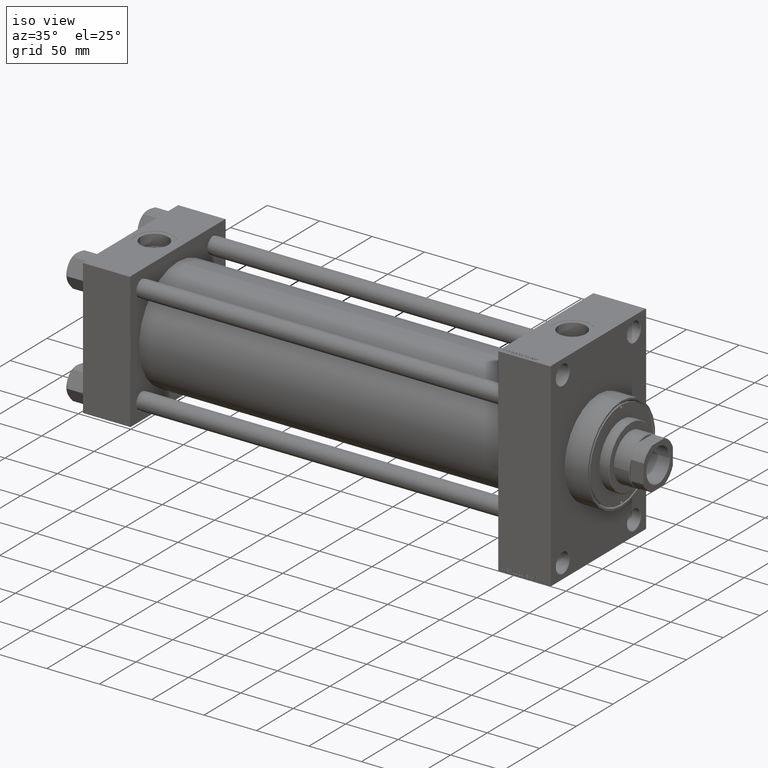
[diagram: clean part render]
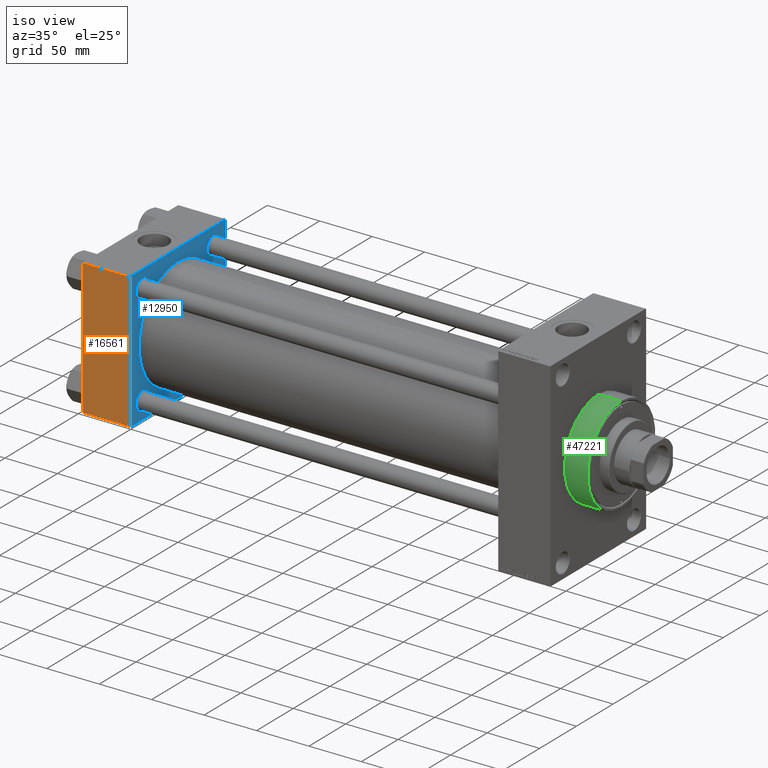
[diagram: same view with three faces highlighted in distinct colors, each labeled with its STEP entity id]
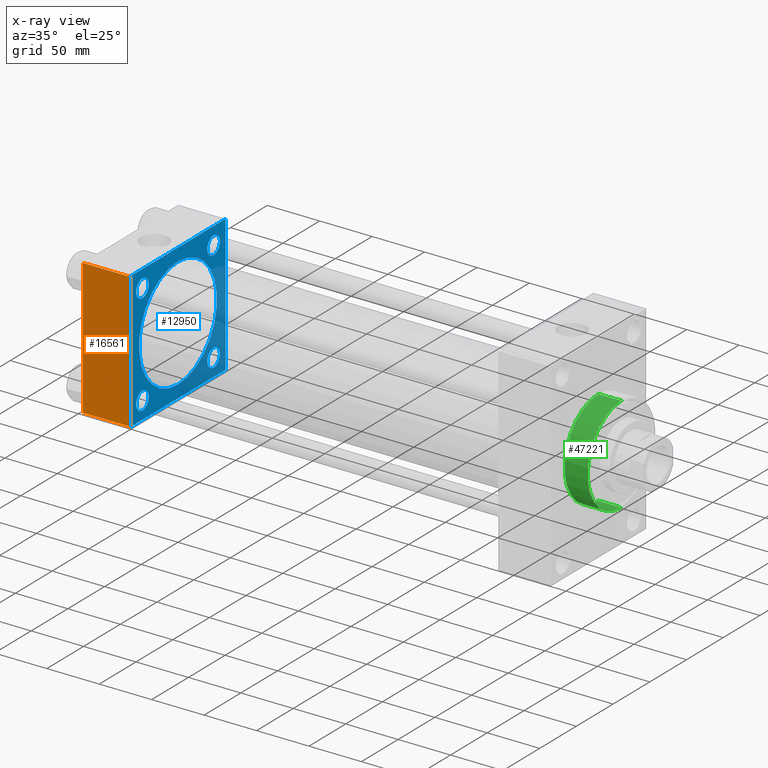
[diagram: x-ray of the same camera — body ghosted, the three highlighted faces saturated]
A machine part, iso view with three faces highlighted in distinct colors.
The next image is the same camera in x-ray (body ghosted, the three faces saturated) — at least one of them is partly hidden behind the body in this view.
Their STEP definitions:

[orange] entity #16561 — the highlighted planar face has unit normal (0, 1, 0).
#4 = ORIENTED_EDGE ( 'NONE', *, *, #20413, .F. ) ;
#1281 = VECTOR ( 'NONE', #29300, 1000.000000000000000 ) ;
#3002 = CARTESIAN_POINT ( 'NONE',  ( 0.000000000000000000, -65.00000000000000000, 64.50000000000000000 ) ) ;
#3211 = LINE ( 'NONE', #15035, #35517 ) ;
#6414 = EDGE_CURVE ( 'NONE', #38175, #41938, #31095, .T. ) ;
#8025 = PLANE ( 'NONE',  #25352 ) ;
#10057 = DIRECTION ( 'NONE',  ( -1.000000000000000000, 0.000000000000000000, 0.000000000000000000 ) ) ;
#10406 = VERTEX_POINT ( 'NONE', #37899 ) ;
#13219 = CARTESIAN_POINT ( 'NONE',  ( 45.00000000000000000, -65.00000000000000000, 64.50000000000000000 ) ) ;
#14693 = VECTOR ( 'NONE', #10057, 1000.000000000000000 ) ;
#15035 = CARTESIAN_POINT ( 'NONE',  ( 45.00000000000000000, -65.00000000000000000, 65.00000000000000000 ) ) ;
#15284 = DIRECTION ( 'NONE',  ( -0.000000000000000000, 1.000000000000000000, 0.000000000000000000 ) ) ;
#16561 = ADVANCED_FACE ( 'NONE', ( #45309 ), #8025, .F. ) ;
#19248 = ORIENTED_EDGE ( 'NONE', *, *, #22031, .T. ) ;
#20413 = EDGE_CURVE ( 'NONE', #38061, #10406, #3211, .T. ) ;
#22031 = EDGE_CURVE ( 'NONE', #38061, #38175, #43231, .T. ) ;
#24328 = EDGE_LOOP ( 'NONE', ( #27119, #35065, #4, #19248 ) ) ;
#25352 = AXIS2_PLACEMENT_3D ( 'NONE', #26874, #15284, #41660 ) ;
#26150 = DIRECTION ( 'NONE',  ( 0.000000000000000000, 0.000000000000000000, -1.000000000000000000 ) ) ;
#26874 = CARTESIAN_POINT ( 'NONE',  ( 45.00000000000000000, -65.00000000000000000, 65.00000000000000000 ) ) ;
#27043 = CARTESIAN_POINT ( 'NONE',  ( 0.000000000000000000, -65.00000000000000000, -64.49999999999991473 ) ) ;
#27119 = ORIENTED_EDGE ( 'NONE', *, *, #6414, .T. ) ;
#27888 = VECTOR ( 'NONE', #45894, 1000.000000000000000 ) ;
#29300 = DIRECTION ( 'NONE',  ( 1.000000000000000000, 0.000000000000000000, 0.000000000000000000 ) ) ;
#30642 = CARTESIAN_POINT ( 'NONE',  ( 45.00000000000000000, -65.00000000000000000, 64.50000000000000000 ) ) ;
#31095 = LINE ( 'NONE', #45398, #27888 ) ;
#33404 = EDGE_CURVE ( 'NONE', #41938, #10406, #34101, .T. ) ;
#34101 = LINE ( 'NONE', #37034, #1281 ) ;
#35065 = ORIENTED_EDGE ( 'NONE', *, *, #33404, .T. ) ;
#35517 = VECTOR ( 'NONE', #26150, 1000.000000000000000 ) ;
#37034 = CARTESIAN_POINT ( 'NONE',  ( 45.00000000000000000, -65.00000000000000000, -64.49999999999991473 ) ) ;
#37899 = CARTESIAN_POINT ( 'NONE',  ( 45.00000000000000000, -65.00000000000000000, -64.49999999999991473 ) ) ;
#38061 = VERTEX_POINT ( 'NONE', #30642 ) ;
#38175 = VERTEX_POINT ( 'NONE', #3002 ) ;
#41660 = DIRECTION ( 'NONE',  ( 0.000000000000000000, -0.000000000000000000, 1.000000000000000000 ) ) ;
#41938 = VERTEX_POINT ( 'NONE', #27043 ) ;
#43231 = LINE ( 'NONE', #13219, #14693 ) ;
#45309 = FACE_OUTER_BOUND ( 'NONE', #24328, .T. ) ;
#45398 = CARTESIAN_POINT ( 'NONE',  ( 0.000000000000000000, -65.00000000000000000, 65.00000000000000000 ) ) ;
#45894 = DIRECTION ( 'NONE',  ( 0.000000000000000000, 0.000000000000000000, -1.000000000000000000 ) ) ;

[blue] entity #12950 — the highlighted planar face has unit normal (-1, 0, 0).
#70 = DIRECTION ( 'NONE',  ( 0.000000000000000000, 0.000000000000000000, 1.000000000000000000 ) ) ;
#226 = VERTEX_POINT ( 'NONE', #47017 ) ;
#679 = EDGE_LOOP ( 'NONE', ( #15068, #38184, #14180, #40739, #21505, #20919, #14470, #4245 ) ) ;
#825 = FACE_OUTER_BOUND ( 'NONE', #679, .T. ) ;
#871 = EDGE_LOOP ( 'NONE', ( #23095, #43294 ) ) ;
#1522 = DIRECTION ( 'NONE',  ( -1.000000000000000000, 0.000000000000000000, -0.000000000000000000 ) ) ;
#1741 = ORIENTED_EDGE ( 'NONE', *, *, #21431, .T. ) ;
#2307 = EDGE_CURVE ( 'NONE', #27009, #7029, #16968, .T. ) ;
#2406 = DIRECTION ( 'NONE',  ( 0.000000000000000000, 0.7071067811865279218, -0.7071067811865671127 ) ) ;
#2525 = DIRECTION ( 'NONE',  ( 0.000000000000000000, -1.000000000000000000, -1.067522139062650425E-16 ) ) ;
#2954 = CIRCLE ( 'NONE', #29972, 8.499999999999896971 ) ;
#3046 = ORIENTED_EDGE ( 'NONE', *, *, #12909, .T. ) ;
#3211 = LINE ( 'NONE', #15035, #35517 ) ;
#3643 = VECTOR ( 'NONE', #3990, 1000.000000000000000 ) ;
#3974 = DIRECTION ( 'NONE',  ( -1.000000000000000000, 0.000000000000000000, -0.000000000000000000 ) ) ;
#3990 = DIRECTION ( 'NONE',  ( -0.000000000000000000, -0.7071067811865672237, -0.7071067811865279218 ) ) ;
#4124 = EDGE_CURVE ( 'NONE', #10406, #7029, #47193, .T. ) ;
#4245 = ORIENTED_EDGE ( 'NONE', *, *, #4124, .T. ) ;
#4444 = FACE_BOUND ( 'NONE', #28496, .T. ) ;
#4456 = LINE ( 'NONE', #23075, #3643 ) ;
#5158 = FACE_BOUND ( 'NONE', #35603, .T. ) ;
#5546 = DIRECTION ( 'NONE',  ( 0.000000000000000000, 0.000000000000000000, -1.000000000000000000 ) ) ;
#5599 = DIRECTION ( 'NONE',  ( -1.000000000000000000, 0.000000000000000000, -0.000000000000000000 ) ) ;
#6422 = CARTESIAN_POINT ( 'NONE',  ( 45.00000000000000000, 65.00000000000000000, -64.49999999999995737 ) ) ;
#6830 = CARTESIAN_POINT ( 'NONE',  ( 45.00000000000000000, -48.44999999999999574, 56.94999999999992468 ) ) ;
#6992 = CARTESIAN_POINT ( 'NONE',  ( 45.00000000000000000, 48.45000000000000995, -39.95000000000011653 ) ) ;
#7029 = VERTEX_POINT ( 'NONE', #13841 ) ;
#7087 = CIRCLE ( 'NONE', #7950, 8.499999999999896971 ) ;
#7950 = AXIS2_PLACEMENT_3D ( 'NONE', #17229, #1522, #36334 ) ;
#8075 = DIRECTION ( 'NONE',  ( 0.000000000000000000, 0.000000000000000000, 1.000000000000000000 ) ) ;
#8117 = DIRECTION ( 'NONE',  ( 0.000000000000000000, 0.000000000000000000, 1.000000000000000000 ) ) ;
#8213 = VERTEX_POINT ( 'NONE', #37463 ) ;
#8555 = FACE_BOUND ( 'NONE', #17776, .T. ) ;
#9048 = DIRECTION ( 'NONE',  ( 0.000000000000000000, 0.000000000000000000, 1.000000000000000000 ) ) ;
#9131 = DIRECTION ( 'NONE',  ( -1.000000000000000000, 0.000000000000000000, -0.000000000000000000 ) ) ;
#9374 = DIRECTION ( 'NONE',  ( 0.000000000000000000, 0.000000000000000000, 1.000000000000000000 ) ) ;
#9555 = ORIENTED_EDGE ( 'NONE', *, *, #42186, .F. ) ;
#9976 = VERTEX_POINT ( 'NONE', #44530 ) ;
#10406 = VERTEX_POINT ( 'NONE', #37899 ) ;
#11154 = EDGE_CURVE ( 'NONE', #46741, #38061, #4456, .T. ) ;
#11596 = AXIS2_PLACEMENT_3D ( 'NONE', #45906, #26734, #23837 ) ;
#11973 = CARTESIAN_POINT ( 'NONE',  ( 45.00000000000000000, 64.49999999999997158, 65.00000000000001421 ) ) ;
#12480 = CARTESIAN_POINT ( 'NONE',  ( 45.00000000000000000, 48.45000000000000995, 48.45000000000001705 ) ) ;
#12671 = FACE_BOUND ( 'NONE', #871, .T. ) ;
#12909 = EDGE_CURVE ( 'NONE', #27642, #44500, #38493, .T. ) ;
#12950 = ADVANCED_FACE ( 'NONE', ( #30565, #4444, #5158, #12671, #8555, #825 ), #23063, .F. ) ;
#13137 = CARTESIAN_POINT ( 'NONE',  ( 45.00000000000000000, 48.45000000000000995, 39.95000000000011653 ) ) ;
#13184 = CARTESIAN_POINT ( 'NONE',  ( 45.00000000000000000, 48.45000000000000995, -56.94999999999991047 ) ) ;
#13841 = CARTESIAN_POINT ( 'NONE',  ( 45.00000000000000000, -64.49999999999994316, -65.00000000000000000 ) ) ;
#14180 = ORIENTED_EDGE ( 'NONE', *, *, #26157, .F. ) ;
#14470 = ORIENTED_EDGE ( 'NONE', *, *, #20413, .T. ) ;
#15035 = CARTESIAN_POINT ( 'NONE',  ( 45.00000000000000000, -65.00000000000000000, 65.00000000000000000 ) ) ;
#15058 = CARTESIAN_POINT ( 'NONE',  ( 44.99999999999998579, -2.602085213965210642E-15, 0.000000000000000000 ) ) ;
#15068 = ORIENTED_EDGE ( 'NONE', *, *, #2307, .F. ) ;
#15088 = VERTEX_POINT ( 'NONE', #40529 ) ;
#15605 = VECTOR ( 'NONE', #5546, 1000.000000000000000 ) ;
#15755 = CARTESIAN_POINT ( 'NONE',  ( 45.00000000000000000, -48.44999999999999574, -48.45000000000003126 ) ) ;
#15846 = CARTESIAN_POINT ( 'NONE',  ( 45.00000000000000000, 48.45000000000000995, -48.45000000000001705 ) ) ;
#16007 = CARTESIAN_POINT ( 'NONE',  ( 45.00000000000000000, 64.49999999999997158, -64.99999999999998579 ) ) ;
#16726 = CARTESIAN_POINT ( 'NONE',  ( 45.00000000000000000, 65.00000000000000000, -64.99999999999998579 ) ) ;
#16968 = LINE ( 'NONE', #16726, #18204 ) ;
#17025 = DIRECTION ( 'NONE',  ( -1.000000000000000000, 0.000000000000000000, -0.000000000000000000 ) ) ;
#17229 = CARTESIAN_POINT ( 'NONE',  ( 45.00000000000000000, 48.45000000000000995, 48.45000000000001705 ) ) ;
#17279 = EDGE_CURVE ( 'NONE', #25049, #46741, #17502, .T. ) ;
#17385 = CARTESIAN_POINT ( 'NONE',  ( 45.00000000000000000, -64.49999999999994316, -65.00000000000000000 ) ) ;
#17502 = LINE ( 'NONE', #43182, #45486 ) ;
#17776 = EDGE_LOOP ( 'NONE', ( #9555, #40298 ) ) ;
#18148 = LINE ( 'NONE', #32445, #27070 ) ;
#18204 = VECTOR ( 'NONE', #46287, 1000.000000000000000 ) ;
#18481 = EDGE_CURVE ( 'NONE', #9976, #40532, #20750, .T. ) ;
#18625 = VERTEX_POINT ( 'NONE', #42975 ) ;
#19564 = AXIS2_PLACEMENT_3D ( 'NONE', #15755, #5599, #46280 ) ;
#19841 = VECTOR ( 'NONE', #28379, 1000.000000000000114 ) ;
#20095 = CIRCLE ( 'NONE', #47202, 8.499999999999896971 ) ;
#20413 = EDGE_CURVE ( 'NONE', #38061, #10406, #3211, .T. ) ;
#20526 = LINE ( 'NONE', #39665, #15605 ) ;
#20750 = CIRCLE ( 'NONE', #38557, 8.499999999999896971 ) ;
#20919 = ORIENTED_EDGE ( 'NONE', *, *, #11154, .T. ) ;
#21431 = EDGE_CURVE ( 'NONE', #34093, #47092, #20095, .T. ) ;
#21505 = ORIENTED_EDGE ( 'NONE', *, *, #17279, .T. ) ;
#22780 = EDGE_CURVE ( 'NONE', #27009, #42279, #18148, .T. ) ;
#23063 = PLANE ( 'NONE',  #47035 ) ;
#23075 = CARTESIAN_POINT ( 'NONE',  ( 45.00000000000000000, -65.00000000000000000, 64.50000000000000000 ) ) ;
#23095 = ORIENTED_EDGE ( 'NONE', *, *, #28085, .T. ) ;
#23837 = DIRECTION ( 'NONE',  ( 0.000000000000000000, 0.000000000000000000, 1.000000000000000000 ) ) ;
#25049 = VERTEX_POINT ( 'NONE', #11973 ) ;
#25940 = EDGE_CURVE ( 'NONE', #44500, #27642, #41123, .T. ) ;
#26150 = DIRECTION ( 'NONE',  ( 0.000000000000000000, 0.000000000000000000, -1.000000000000000000 ) ) ;
#26157 = EDGE_CURVE ( 'NONE', #15088, #42279, #20526, .T. ) ;
#26734 = DIRECTION ( 'NONE',  ( 1.000000000000000000, -0.000000000000000000, 0.000000000000000000 ) ) ;
#27009 = VERTEX_POINT ( 'NONE', #16007 ) ;
#27070 = VECTOR ( 'NONE', #47472, 1000.000000000000114 ) ;
#27642 = VERTEX_POINT ( 'NONE', #13184 ) ;
#28085 = EDGE_CURVE ( 'NONE', #40532, #9976, #7087, .T. ) ;
#28261 = VECTOR ( 'NONE', #2406, 1000.000000000000000 ) ;
#28379 = DIRECTION ( 'NONE',  ( 0.000000000000000000, -0.7071067811865474617, 0.7071067811865474617 ) ) ;
#28496 = EDGE_LOOP ( 'NONE', ( #3046, #31329 ) ) ;
#29051 = ORIENTED_EDGE ( 'NONE', *, *, #32227, .T. ) ;
#29587 = DIRECTION ( 'NONE',  ( 1.000000000000000000, -0.000000000000000000, 0.000000000000000000 ) ) ;
#29972 = AXIS2_PLACEMENT_3D ( 'NONE', #44904, #17025, #9048 ) ;
#30565 = FACE_BOUND ( 'NONE', #30746, .T. ) ;
#30610 = CARTESIAN_POINT ( 'NONE',  ( 45.00000000000000000, -48.44999999999999574, -56.94999999999992468 ) ) ;
#30642 = CARTESIAN_POINT ( 'NONE',  ( 45.00000000000000000, -65.00000000000000000, 64.50000000000000000 ) ) ;
#30746 = EDGE_LOOP ( 'NONE', ( #29051, #44194 ) ) ;
#30865 = DIRECTION ( 'NONE',  ( -1.000000000000000000, 0.000000000000000000, -0.000000000000000000 ) ) ;
#31329 = ORIENTED_EDGE ( 'NONE', *, *, #25940, .T. ) ;
#32227 = EDGE_CURVE ( 'NONE', #41341, #8213, #33473, .T. ) ;
#32445 = CARTESIAN_POINT ( 'NONE',  ( 45.00000000000000000, 65.00000000000000000, -64.49999999999995737 ) ) ;
#33473 = CIRCLE ( 'NONE', #19564, 8.499999999999896971 ) ;
#33956 = DIRECTION ( 'NONE',  ( 0.000000000000000000, 0.000000000000000000, 1.000000000000000000 ) ) ;
#33961 = DIRECTION ( 'NONE',  ( -1.000000000000000000, 0.000000000000000000, -0.000000000000000000 ) ) ;
#34093 = VERTEX_POINT ( 'NONE', #46603 ) ;
#34443 = CARTESIAN_POINT ( 'NONE',  ( 45.00000000000000000, 0.000000000000000000, 0.000000000000000000 ) ) ;
#34690 = DIRECTION ( 'NONE',  ( -0.000000000000000000, 0.000000000000000000, 1.000000000000000000 ) ) ;
#35187 = EDGE_CURVE ( 'NONE', #15088, #25049, #47287, .T. ) ;
#35517 = VECTOR ( 'NONE', #26150, 1000.000000000000000 ) ;
#35603 = EDGE_LOOP ( 'NONE', ( #1741, #39459 ) ) ;
#36334 = DIRECTION ( 'NONE',  ( 0.000000000000000000, 0.000000000000000000, 1.000000000000000000 ) ) ;
#37358 = EDGE_CURVE ( 'NONE', #47092, #34093, #2954, .T. ) ;
#37463 = CARTESIAN_POINT ( 'NONE',  ( 45.00000000000000000, -48.44999999999999574, -39.95000000000013074 ) ) ;
#37543 = EDGE_CURVE ( 'NONE', #18625, #226, #37716, .T. ) ;
#37716 = CIRCLE ( 'NONE', #46253, 53.00000000000000711 ) ;
#37838 = DIRECTION ( 'NONE',  ( -1.000000000000000000, 0.000000000000000000, -0.000000000000000000 ) ) ;
#37899 = CARTESIAN_POINT ( 'NONE',  ( 45.00000000000000000, -65.00000000000000000, -64.49999999999991473 ) ) ;
#38061 = VERTEX_POINT ( 'NONE', #30642 ) ;
#38184 = ORIENTED_EDGE ( 'NONE', *, *, #22780, .T. ) ;
#38371 = DIRECTION ( 'NONE',  ( 0.000000000000000000, 0.000000000000000000, 1.000000000000000000 ) ) ;
#38493 = CIRCLE ( 'NONE', #46265, 8.499999999999896971 ) ;
#38557 = AXIS2_PLACEMENT_3D ( 'NONE', #12480, #30865, #38371 ) ;
#38800 = AXIS2_PLACEMENT_3D ( 'NONE', #15846, #41282, #8117 ) ;
#39459 = ORIENTED_EDGE ( 'NONE', *, *, #37358, .T. ) ;
#39527 = CARTESIAN_POINT ( 'NONE',  ( 45.00000000000000000, 64.49999999999997158, 65.00000000000001421 ) ) ;
#39665 = CARTESIAN_POINT ( 'NONE',  ( 45.00000000000000000, 65.00000000000000000, 65.00000000000001421 ) ) ;
#40298 = ORIENTED_EDGE ( 'NONE', *, *, #37543, .F. ) ;
#40529 = CARTESIAN_POINT ( 'NONE',  ( 45.00000000000000000, 65.00000000000000000, 64.49999999999998579 ) ) ;
#40532 = VERTEX_POINT ( 'NONE', #13137 ) ;
#40739 = ORIENTED_EDGE ( 'NONE', *, *, #35187, .T. ) ;
#41123 = CIRCLE ( 'NONE', #38800, 8.499999999999896971 ) ;
#41282 = DIRECTION ( 'NONE',  ( -1.000000000000000000, 0.000000000000000000, -0.000000000000000000 ) ) ;
#41341 = VERTEX_POINT ( 'NONE', #30610 ) ;
#41723 = AXIS2_PLACEMENT_3D ( 'NONE', #42288, #9131, #9374 ) ;
#41726 = CIRCLE ( 'NONE', #11596, 53.00000000000000711 ) ;
#41957 = CARTESIAN_POINT ( 'NONE',  ( 45.00000000000000000, 48.45000000000000995, -48.45000000000001705 ) ) ;
#42186 = EDGE_CURVE ( 'NONE', #226, #18625, #41726, .T. ) ;
#42279 = VERTEX_POINT ( 'NONE', #6422 ) ;
#42288 = CARTESIAN_POINT ( 'NONE',  ( 45.00000000000000000, -48.44999999999999574, -48.45000000000003126 ) ) ;
#42975 = CARTESIAN_POINT ( 'NONE',  ( 44.99999999999998579, 3.888542821515762466E-15, -53.00000000000000711 ) ) ;
#43182 = CARTESIAN_POINT ( 'NONE',  ( 45.00000000000000000, 65.00000000000000000, 65.00000000000001421 ) ) ;
#43294 = ORIENTED_EDGE ( 'NONE', *, *, #18481, .T. ) ;
#44167 = CIRCLE ( 'NONE', #41723, 8.499999999999896971 ) ;
#44194 = ORIENTED_EDGE ( 'NONE', *, *, #45535, .T. ) ;
#44500 = VERTEX_POINT ( 'NONE', #6992 ) ;
#44530 = CARTESIAN_POINT ( 'NONE',  ( 45.00000000000000000, 48.45000000000000995, 56.94999999999991047 ) ) ;
#44904 = CARTESIAN_POINT ( 'NONE',  ( 45.00000000000000000, -48.44999999999999574, 48.45000000000003126 ) ) ;
#45129 = CARTESIAN_POINT ( 'NONE',  ( 45.00000000000000000, -48.44999999999999574, 48.45000000000003126 ) ) ;
#45486 = VECTOR ( 'NONE', #2525, 1000.000000000000000 ) ;
#45535 = EDGE_CURVE ( 'NONE', #8213, #41341, #44167, .T. ) ;
#45906 = CARTESIAN_POINT ( 'NONE',  ( 44.99999999999998579, -2.602085213965210642E-15, 0.000000000000000000 ) ) ;
#46253 = AXIS2_PLACEMENT_3D ( 'NONE', #15058, #29587, #70 ) ;
#46265 = AXIS2_PLACEMENT_3D ( 'NONE', #41957, #33961, #8075 ) ;
#46280 = DIRECTION ( 'NONE',  ( 0.000000000000000000, 0.000000000000000000, 1.000000000000000000 ) ) ;
#46287 = DIRECTION ( 'NONE',  ( 0.000000000000000000, -1.000000000000000000, -1.067522139062650425E-16 ) ) ;
#46603 = CARTESIAN_POINT ( 'NONE',  ( 45.00000000000000000, -48.44999999999999574, 39.95000000000013074 ) ) ;
#46741 = VERTEX_POINT ( 'NONE', #47560 ) ;
#47017 = CARTESIAN_POINT ( 'NONE',  ( 44.99999999999998579, -2.602085213965210642E-15, 53.00000000000000711 ) ) ;
#47035 = AXIS2_PLACEMENT_3D ( 'NONE', #34443, #37838, #34690 ) ;
#47092 = VERTEX_POINT ( 'NONE', #6830 ) ;
#47193 = LINE ( 'NONE', #17385, #28261 ) ;
#47202 = AXIS2_PLACEMENT_3D ( 'NONE', #45129, #3974, #33956 ) ;
#47287 = LINE ( 'NONE', #39527, #19841 ) ;
#47472 = DIRECTION ( 'NONE',  ( -0.000000000000000000, 0.7071067811865474617, 0.7071067811865474617 ) ) ;
#47560 = CARTESIAN_POINT ( 'NONE',  ( 45.00000000000000000, -64.49999999999997158, 65.00000000000000000 ) ) ;

[green] entity #47221 — the highlighted cylindrical surface (partial cylindrical patch) has radius 46 mm, axis along (-1, -0, -0).
#71 = AXIS2_PLACEMENT_3D ( 'NONE', #8963, #13080, #27345 ) ;
#165 = VERTEX_POINT ( 'NONE', #5376 ) ;
#1548 = DIRECTION ( 'NONE',  ( 1.000000000000000000, 0.000000000000000000, 0.000000000000000000 ) ) ;
#1720 = CYLINDRICAL_SURFACE ( 'NONE', #71, 46.00000000000000000 ) ;
#1948 = CARTESIAN_POINT ( 'NONE',  ( 445.9999999999999432, 0.000000000000000000, 46.00000000000000000 ) ) ;
#2100 = CIRCLE ( 'NONE', #42266, 46.00000000000000000 ) ;
#2968 = VERTEX_POINT ( 'NONE', #41793 ) ;
#4428 = EDGE_CURVE ( 'NONE', #2968, #28472, #15884, .T. ) ;
#5376 = CARTESIAN_POINT ( 'NONE',  ( 468.0000000000000000, 0.000000000000000000, 46.00000000000000000 ) ) ;
#8801 = DIRECTION ( 'NONE',  ( 0.000000000000000000, 0.000000000000000000, -1.000000000000000000 ) ) ;
#8963 = CARTESIAN_POINT ( 'NONE',  ( 468.0000000000000000, 0.000000000000000000, 0.000000000000000000 ) ) ;
#9310 = CARTESIAN_POINT ( 'NONE',  ( 468.0000000000000000, 0.000000000000000000, 46.00000000000000000 ) ) ;
#10275 = VECTOR ( 'NONE', #38834, 1000.000000000000000 ) ;
#10617 = EDGE_CURVE ( 'NONE', #165, #2968, #2100, .T. ) ;
#13080 = DIRECTION ( 'NONE',  ( -1.000000000000000000, -0.000000000000000000, -0.000000000000000000 ) ) ;
#14735 = ORIENTED_EDGE ( 'NONE', *, *, #28360, .T. ) ;
#14893 = EDGE_LOOP ( 'NONE', ( #28220, #30991, #47450, #14735 ) ) ;
#15884 = LINE ( 'NONE', #30647, #19019 ) ;
#16216 = FACE_OUTER_BOUND ( 'NONE', #14893, .T. ) ;
#19019 = VECTOR ( 'NONE', #31140, 1000.000000000000000 ) ;
#22506 = CARTESIAN_POINT ( 'NONE',  ( 445.9999999999999432, 0.000000000000000000, 0.000000000000000000 ) ) ;
#24181 = CARTESIAN_POINT ( 'NONE',  ( 445.9999999999999432, 5.633375276077824704E-15, -46.00000000000000000 ) ) ;
#27345 = DIRECTION ( 'NONE',  ( 0.000000000000000000, 0.000000000000000000, 1.000000000000000000 ) ) ;
#27415 = CARTESIAN_POINT ( 'NONE',  ( 468.0000000000000000, 0.000000000000000000, 0.000000000000000000 ) ) ;
#27666 = EDGE_CURVE ( 'NONE', #165, #40032, #27687, .T. ) ;
#27687 = LINE ( 'NONE', #9310, #10275 ) ;
#28220 = ORIENTED_EDGE ( 'NONE', *, *, #4428, .F. ) ;
#28360 = EDGE_CURVE ( 'NONE', #40032, #28472, #28718, .T. ) ;
#28472 = VERTEX_POINT ( 'NONE', #24181 ) ;
#28718 = CIRCLE ( 'NONE', #31018, 46.00000000000000000 ) ;
#30647 = CARTESIAN_POINT ( 'NONE',  ( 468.0000000000000000, 5.633375276077824704E-15, -46.00000000000000000 ) ) ;
#30991 = ORIENTED_EDGE ( 'NONE', *, *, #10617, .F. ) ;
#31018 = AXIS2_PLACEMENT_3D ( 'NONE', #22506, #45054, #34361 ) ;
#31140 = DIRECTION ( 'NONE',  ( -1.000000000000000000, -0.000000000000000000, -0.000000000000000000 ) ) ;
#34361 = DIRECTION ( 'NONE',  ( 0.000000000000000000, 0.000000000000000000, -1.000000000000000000 ) ) ;
#38834 = DIRECTION ( 'NONE',  ( -1.000000000000000000, -0.000000000000000000, -0.000000000000000000 ) ) ;
#40032 = VERTEX_POINT ( 'NONE', #1948 ) ;
#41793 = CARTESIAN_POINT ( 'NONE',  ( 468.0000000000000000, 5.633375276077824704E-15, -46.00000000000000000 ) ) ;
#42266 = AXIS2_PLACEMENT_3D ( 'NONE', #27415, #1548, #8801 ) ;
#45054 = DIRECTION ( 'NONE',  ( 1.000000000000000000, 0.000000000000000000, 0.000000000000000000 ) ) ;
#47221 = ADVANCED_FACE ( 'NONE', ( #16216 ), #1720, .T. ) ;
#47450 = ORIENTED_EDGE ( 'NONE', *, *, #27666, .T. ) ;